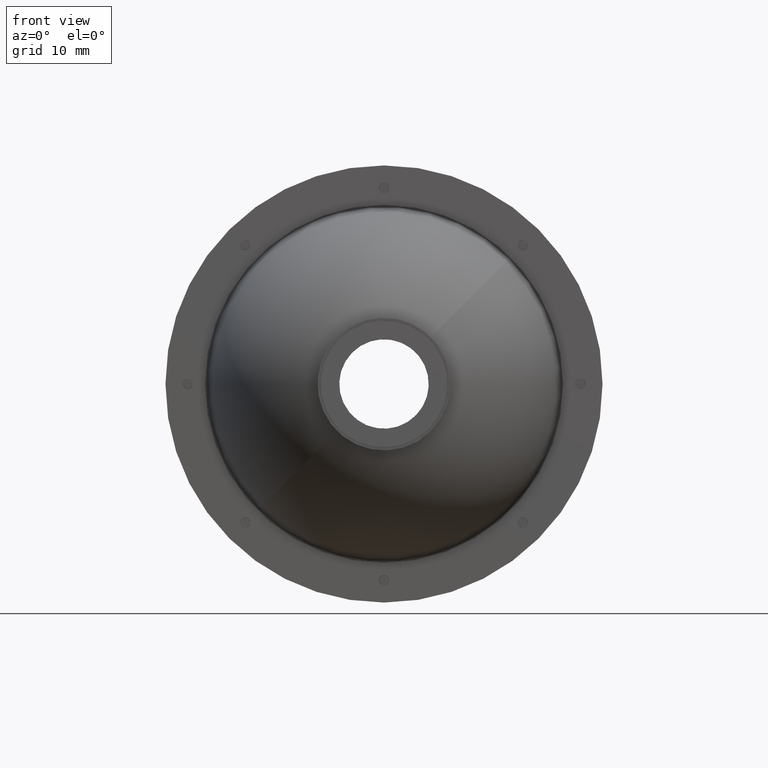
[diagram: clean part render]
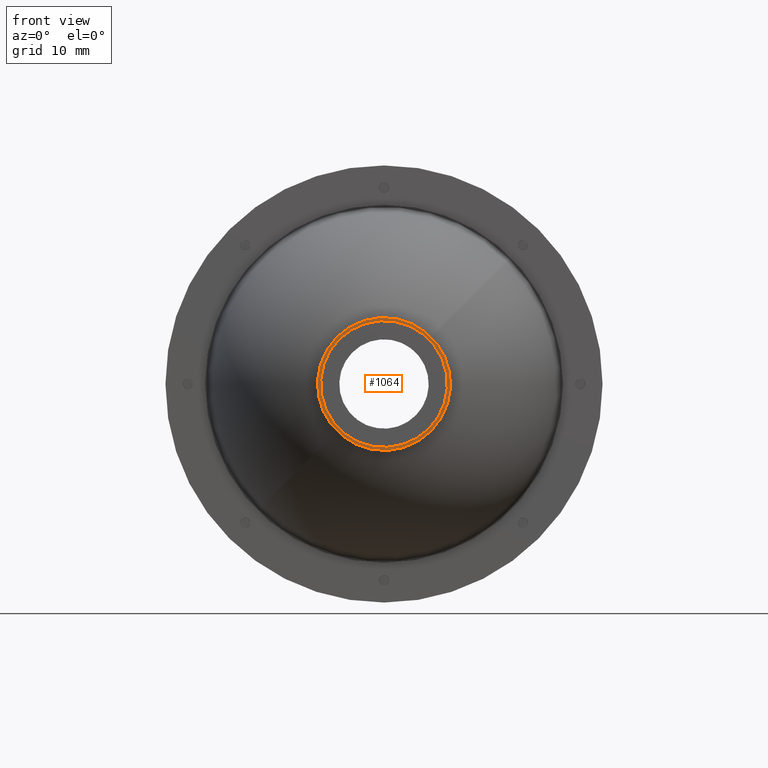
[diagram: same view with one face highlighted and labeled with its STEP entity id]
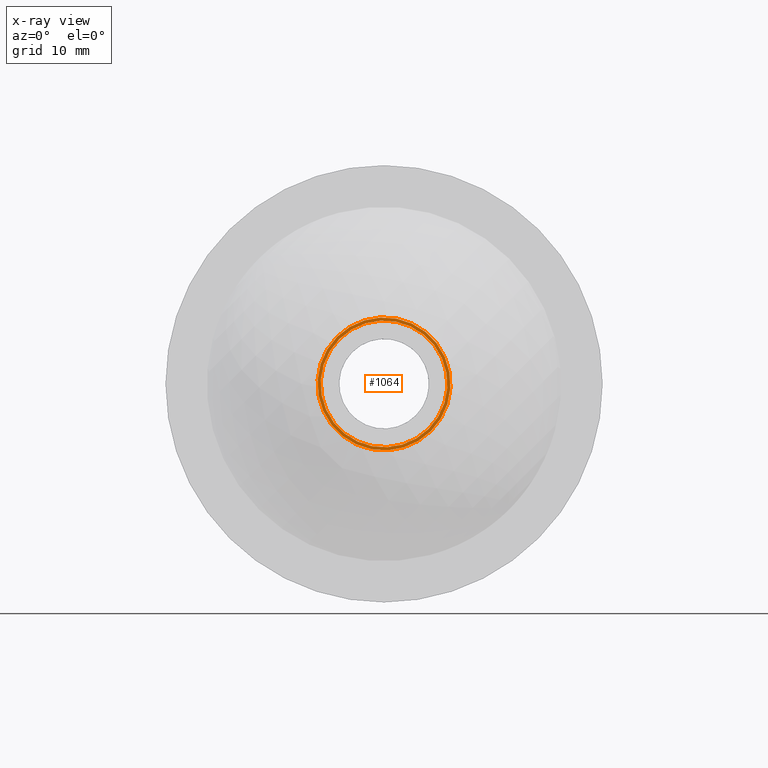
[diagram: x-ray of the same camera — body ghosted, the highlighted face saturated]
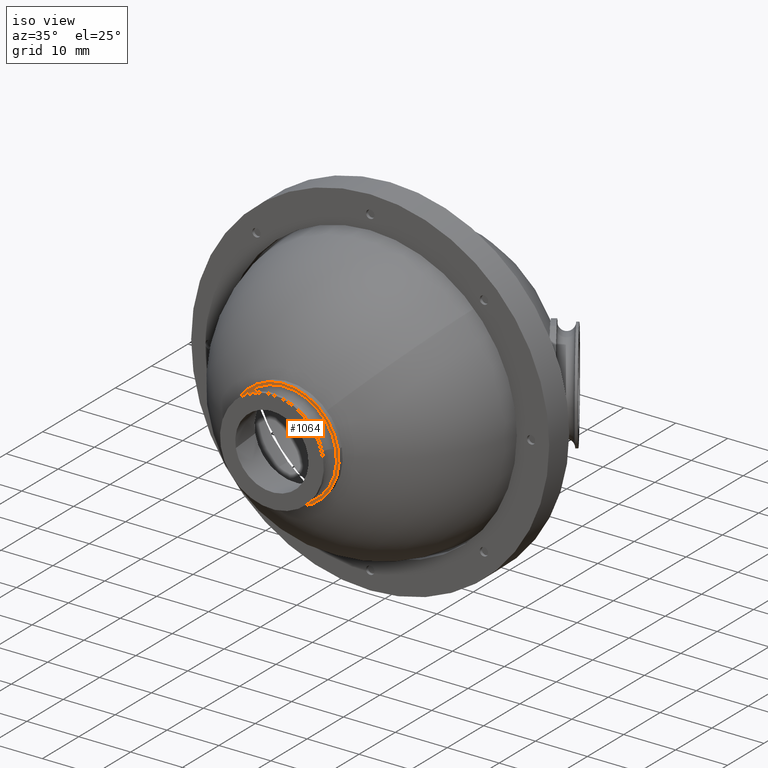
[diagram: same view with one face highlighted and labeled with its STEP entity id]
A machine part, front view. The second image highlights one B-rep face of the part: STEP entity #1064.
The next image is the same camera in x-ray: the body ghosted, the highlighted face saturated — about 0% of this face is hidden behind the body in this view.
A second angle (iso view) of the same face is appended — the face is thin or edge-on in the first view.
In plain terms, the highlighted planar face has unit normal (-0, 1, 0).
Its self-contained STEP definition (entity closure, byte-faithful):
#31 = AXIS2_PLACEMENT_3D ( 'NONE', #4585, #5744, #4649 ) ;
#606 = FACE_BOUND ( 'NONE', #4232, .T. ) ;
#871 = EDGE_CURVE ( 'NONE', #1069, #4117, #5786, .T. ) ;
#926 = DIRECTION ( 'NONE',  ( -0.9844927593900340002, 0.000000000000000000, -0.1754252168549220725 ) ) ;
#1064 = ADVANCED_FACE ( 'NONE', ( #606, #1680 ), #6128, .F. ) ;
#1069 = VERTEX_POINT ( 'NONE', #3670 ) ;
#1106 = CARTESIAN_POINT ( 'NONE',  ( 8.484018949608305604, -45.46425954842823813, 1.884329748520025588E-15 ) ) ;
#1244 = DIRECTION ( 'NONE',  ( -6.492176973796427489E-17, 1.000000000000000000, 6.925509685190237264E-17 ) ) ;
#1531 = CIRCLE ( 'NONE', #4974, 10.50000000000000355 ) ;
#1636 = DIRECTION ( 'NONE',  ( -6.492176973796427489E-17, 1.000000000000000000, 6.925509685190237264E-17 ) ) ;
#1680 = FACE_OUTER_BOUND ( 'NONE', #4011, .T. ) ;
#1755 = CARTESIAN_POINT ( 'NONE',  ( 8.484018949608305604, -45.46425954842823813, 1.884329748520025588E-15 ) ) ;
#1793 = EDGE_CURVE ( 'NONE', #5283, #3155, #1531, .T. ) ;
#2157 = CARTESIAN_POINT ( 'NONE',  ( 8.484018949608305604, -45.46425954842823103, 1.884329748520025588E-15 ) ) ;
#2179 = AXIS2_PLACEMENT_3D ( 'NONE', #1755, #6001, #926 ) ;
#2693 = EDGE_CURVE ( 'NONE', #4117, #1069, #6411, .T. ) ;
#3087 = DIRECTION ( 'NONE',  ( -6.492176973796427489E-17, 1.000000000000000000, 6.925509685190237264E-17 ) ) ;
#3155 = VERTEX_POINT ( 'NONE', #4707 ) ;
#3266 = DIRECTION ( 'NONE',  ( 0.9844927593900341112, 0.000000000000000000, 0.1754252168549221003 ) ) ;
#3476 = ORIENTED_EDGE ( 'NONE', *, *, #5653, .F. ) ;
#3568 = ORIENTED_EDGE ( 'NONE', *, *, #2693, .T. ) ;
#3670 = CARTESIAN_POINT ( 'NONE',  ( 18.32894654350864627, -45.46425954842823813, 1.754252168549224056 ) ) ;
#3796 = AXIS2_PLACEMENT_3D ( 'NONE', #4343, #1244, #3266 ) ;
#4011 = EDGE_LOOP ( 'NONE', ( #4854, #3476 ) ) ;
#4080 = DIRECTION ( 'NONE',  ( 0.9844927593900341112, 0.000000000000000000, 0.1754252168549221003 ) ) ;
#4117 = VERTEX_POINT ( 'NONE', #4312 ) ;
#4232 = EDGE_LOOP ( 'NONE', ( #3568, #5971 ) ) ;
#4312 = CARTESIAN_POINT ( 'NONE',  ( -1.360908644292035508, -45.46425954842823813, -1.754252168549219171 ) ) ;
#4343 = CARTESIAN_POINT ( 'NONE',  ( 8.484018949608305604, -45.46425954842823103, 1.884329748520025588E-15 ) ) ;
#4585 = CARTESIAN_POINT ( 'NONE',  ( 8.484018949608305604, -45.46425954842823813, 1.884329748520025588E-15 ) ) ;
#4649 = DIRECTION ( 'NONE',  ( -0.9844927593900340002, -5.176592185025924086E-17, -0.1754252168549220725 ) ) ;
#4707 = CARTESIAN_POINT ( 'NONE',  ( 18.82119292320366810, -45.46425954842823813, 1.841964776976684925 ) ) ;
#4854 = ORIENTED_EDGE ( 'NONE', *, *, #1793, .F. ) ;
#4974 = AXIS2_PLACEMENT_3D ( 'NONE', #1106, #3087, #5086 ) ;
#5048 = AXIS2_PLACEMENT_3D ( 'NONE', #2157, #1636, #4080 ) ;
#5086 = DIRECTION ( 'NONE',  ( -0.9844927593900340002, 0.000000000000000000, -0.1754252168549220725 ) ) ;
#5283 = VERTEX_POINT ( 'NONE', #5550 ) ;
#5550 = CARTESIAN_POINT ( 'NONE',  ( -1.853155023987054006, -45.46425954842823813, -1.841964776976680263 ) ) ;
#5653 = EDGE_CURVE ( 'NONE', #3155, #5283, #6048, .T. ) ;
#5744 = DIRECTION ( 'NONE',  ( -6.492176973796426257E-17, 1.000000000000000000, 6.925509685190237264E-17 ) ) ;
#5786 = CIRCLE ( 'NONE', #3796, 10.00000000000000000 ) ;
#5971 = ORIENTED_EDGE ( 'NONE', *, *, #871, .T. ) ;
#6001 = DIRECTION ( 'NONE',  ( -6.492176973796427489E-17, 1.000000000000000000, 6.925509685190237264E-17 ) ) ;
#6048 = CIRCLE ( 'NONE', #2179, 10.50000000000000355 ) ;
#6128 = PLANE ( 'NONE',  #31 ) ;
#6411 = CIRCLE ( 'NONE', #5048, 10.00000000000000000 ) ;